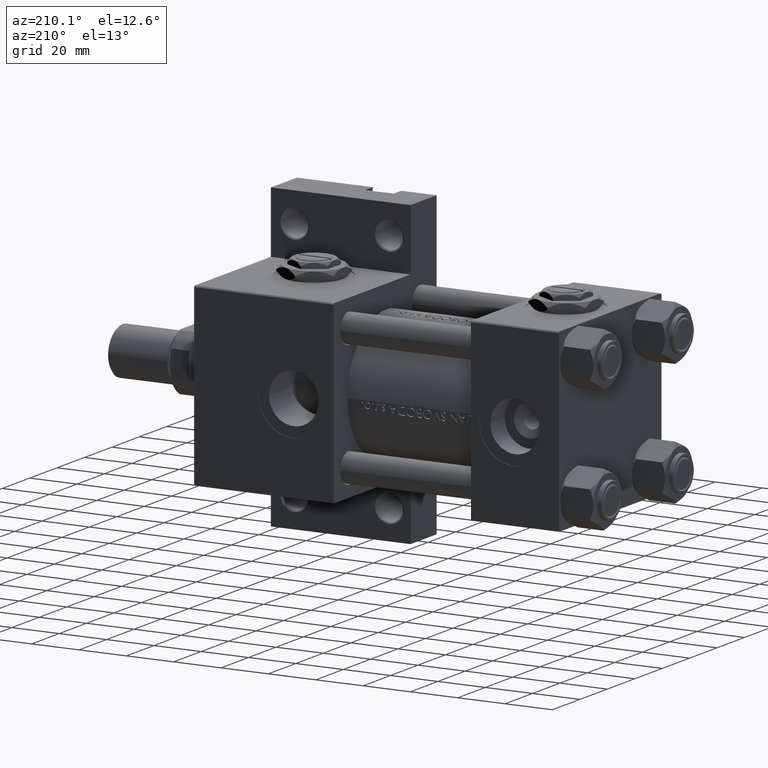
[diagram: clean part render]
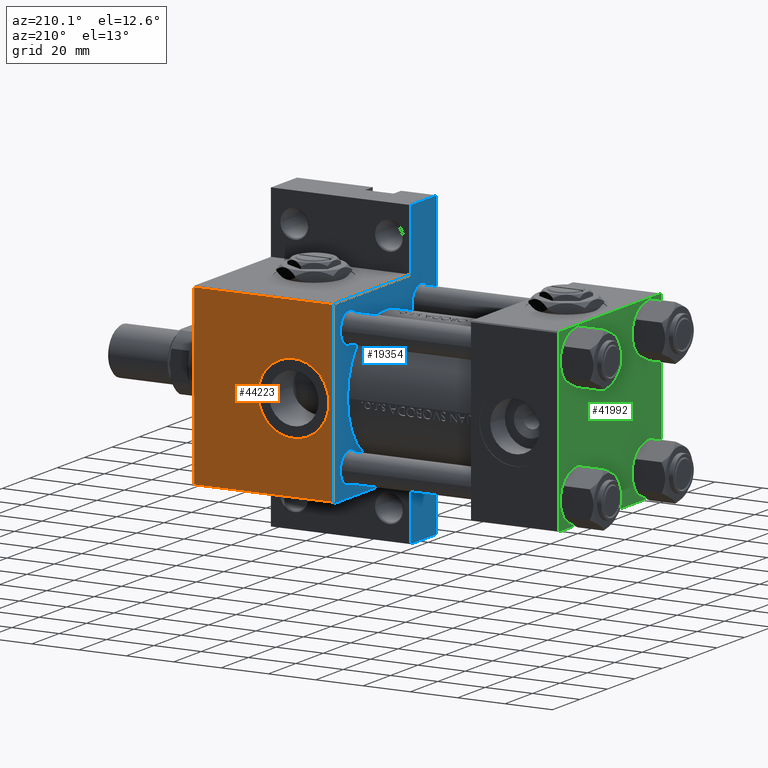
[diagram: same view with three faces highlighted in distinct colors, each labeled with its STEP entity id]
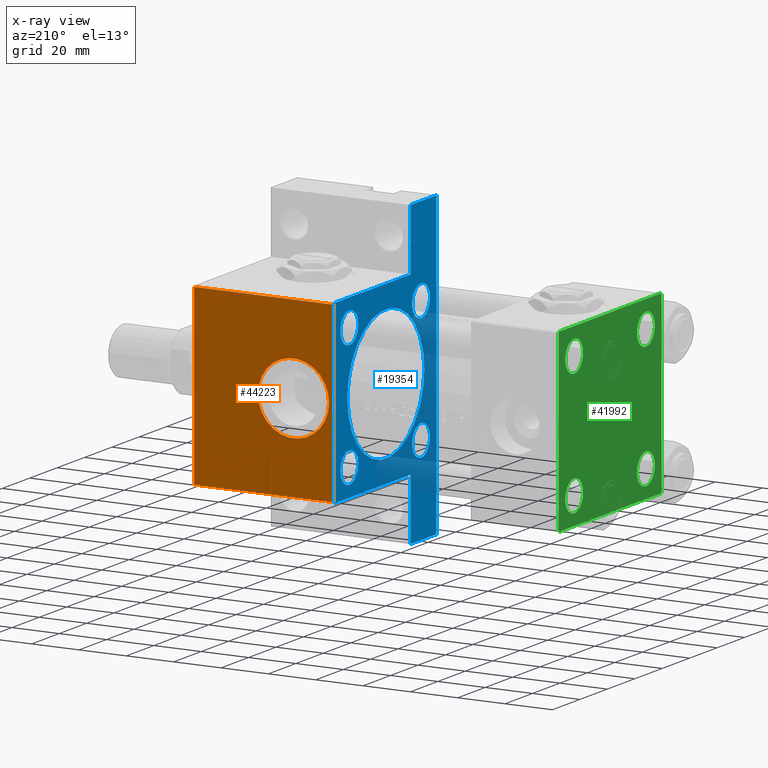
[diagram: x-ray of the same camera — body ghosted, the three highlighted faces saturated]
A machine part, auxiliary view with three faces highlighted in distinct colors.
The next image is the same camera in x-ray (body ghosted, the three faces saturated) — at least one of them is partly hidden behind the body in this view.
Their STEP definitions:

[orange] entity #44223 — the highlighted planar face has unit normal (0, -1, -0).
#439 = EDGE_CURVE ( 'NONE', #23281, #19989, #43834, .T. ) ;
#1042 = AXIS2_PLACEMENT_3D ( 'NONE', #26867, #34738, #34981 ) ;
#3076 = DIRECTION ( 'NONE',  ( 0.000000000000000000, -1.000000000000000000, -1.850371707708594316E-16 ) ) ;
#3656 = LINE ( 'NONE', #19887, #40674 ) ;
#6002 = DIRECTION ( 'NONE',  ( 1.000000000000000000, 0.000000000000000000, 0.000000000000000000 ) ) ;
#7352 = ORIENTED_EDGE ( 'NONE', *, *, #25966, .F. ) ;
#9931 = CARTESIAN_POINT ( 'NONE',  ( 112.0000000000000000, -6.938893903907226011E-15, 37.49999999999998579 ) ) ;
#10592 = VERTEX_POINT ( 'NONE', #48179 ) ;
#10626 = AXIS2_PLACEMENT_3D ( 'NONE', #9931, #29218, #33268 ) ;
#10809 = EDGE_CURVE ( 'NONE', #19989, #23281, #35987, .T. ) ;
#11886 = CARTESIAN_POINT ( 'NONE',  ( 95.00000000000000000, -36.99999999999997158, 37.49999999999997868 ) ) ;
#13180 = VECTOR ( 'NONE', #6002, 1000.000000000000000 ) ;
#16055 = ORIENTED_EDGE ( 'NONE', *, *, #46818, .T. ) ;
#17051 = EDGE_LOOP ( 'NONE', ( #26608, #44180 ) ) ;
#17581 = EDGE_CURVE ( 'NONE', #46541, #10592, #39150, .T. ) ;
#19480 = DIRECTION ( 'NONE',  ( 0.000000000000000000, 0.000000000000000000, 1.000000000000000000 ) ) ;
#19887 = CARTESIAN_POINT ( 'NONE',  ( 95.00000000000000000, 37.50000000000000000, 37.49999999999999289 ) ) ;
#19896 = VECTOR ( 'NONE', #3076, 1000.000000000000000 ) ;
#19989 = VERTEX_POINT ( 'NONE', #44779 ) ;
#22608 = LINE ( 'NONE', #49760, #19896 ) ;
#23281 = VERTEX_POINT ( 'NONE', #23734 ) ;
#23638 = ORIENTED_EDGE ( 'NONE', *, *, #17581, .T. ) ;
#23734 = CARTESIAN_POINT ( 'NONE',  ( 96.99999999999998579, -5.101923705186194844E-15, 37.49999999999998579 ) ) ;
#23823 = EDGE_LOOP ( 'NONE', ( #7352, #23638, #16055, #32313 ) ) ;
#24603 = AXIS2_PLACEMENT_3D ( 'NONE', #46358, #19480, #27099 ) ;
#25285 = LINE ( 'NONE', #26304, #13180 ) ;
#25966 = EDGE_CURVE ( 'NONE', #46541, #32373, #22608, .T. ) ;
#26304 = CARTESIAN_POINT ( 'NONE',  ( 154.0000000000000000, -36.99999999999997158, 37.49999999999997868 ) ) ;
#26608 = ORIENTED_EDGE ( 'NONE', *, *, #10809, .F. ) ;
#26867 = CARTESIAN_POINT ( 'NONE',  ( 154.0000000000000000, 37.50000000000000000, 37.49999999999999289 ) ) ;
#27099 = DIRECTION ( 'NONE',  ( 1.000000000000000000, 0.000000000000000000, 0.000000000000000000 ) ) ;
#27687 = CARTESIAN_POINT ( 'NONE',  ( 154.0000000000000000, -36.99999999999997158, 37.49999999999997868 ) ) ;
#27740 = DIRECTION ( 'NONE',  ( -1.000000000000000000, 0.000000000000000000, 0.000000000000000000 ) ) ;
#29218 = DIRECTION ( 'NONE',  ( 0.000000000000000000, 0.000000000000000000, 1.000000000000000000 ) ) ;
#30805 = CARTESIAN_POINT ( 'NONE',  ( 95.00000000000000000, 37.00000000000000000, 37.49999999999999289 ) ) ;
#32313 = ORIENTED_EDGE ( 'NONE', *, *, #47924, .T. ) ;
#32373 = VERTEX_POINT ( 'NONE', #27687 ) ;
#33268 = DIRECTION ( 'NONE',  ( 1.000000000000000000, 0.000000000000000000, 0.000000000000000000 ) ) ;
#34738 = DIRECTION ( 'NONE',  ( 0.000000000000000000, 1.850371707708594316E-16, -1.000000000000000000 ) ) ;
#34981 = DIRECTION ( 'NONE',  ( 0.000000000000000000, 1.000000000000000000, 1.850371707708594316E-16 ) ) ;
#35987 = CIRCLE ( 'NONE', #24603, 15.00000000000000000 ) ;
#39150 = LINE ( 'NONE', #30805, #41565 ) ;
#40674 = VECTOR ( 'NONE', #46256, 1000.000000000000000 ) ;
#41565 = VECTOR ( 'NONE', #27740, 1000.000000000000000 ) ;
#42323 = FACE_OUTER_BOUND ( 'NONE', #23823, .T. ) ;
#42579 = FACE_BOUND ( 'NONE', #17051, .T. ) ;
#43331 = PLANE ( 'NONE',  #1042 ) ;
#43409 = VERTEX_POINT ( 'NONE', #11886 ) ;
#43834 = CIRCLE ( 'NONE', #10626, 15.00000000000000000 ) ;
#44180 = ORIENTED_EDGE ( 'NONE', *, *, #439, .F. ) ;
#44223 = ADVANCED_FACE ( 'NONE', ( #42579, #42323 ), #43331, .F. ) ;
#44779 = CARTESIAN_POINT ( 'NONE',  ( 127.0000000000000000, -6.938893903907226011E-15, 37.49999999999998579 ) ) ;
#46067 = CARTESIAN_POINT ( 'NONE',  ( 154.0000000000000000, 37.00000000000000000, 37.49999999999999289 ) ) ;
#46256 = DIRECTION ( 'NONE',  ( 0.000000000000000000, -1.000000000000000000, -1.850371707708594316E-16 ) ) ;
#46358 = CARTESIAN_POINT ( 'NONE',  ( 112.0000000000000000, -6.938893903907226011E-15, 37.49999999999998579 ) ) ;
#46541 = VERTEX_POINT ( 'NONE', #46067 ) ;
#46818 = EDGE_CURVE ( 'NONE', #10592, #43409, #3656, .T. ) ;
#47924 = EDGE_CURVE ( 'NONE', #43409, #32373, #25285, .T. ) ;
#48179 = CARTESIAN_POINT ( 'NONE',  ( 95.00000000000000000, 37.00000000000000000, 37.49999999999999289 ) ) ;
#49760 = CARTESIAN_POINT ( 'NONE',  ( 154.0000000000000000, 37.50000000000000000, 37.49999999999999289 ) ) ;

[blue] entity #19354 — the highlighted planar face has unit normal (-1, 0, 0).
#401 = DIRECTION ( 'NONE',  ( -0.000000000000000000, 1.000000000000000000, -0.000000000000000000 ) ) ;
#672 = FACE_BOUND ( 'NONE', #16567, .T. ) ;
#1100 = CARTESIAN_POINT ( 'NONE',  ( 94.99999999999998579, -63.50000000000000000, -18.50000000000000000 ) ) ;
#1457 = VERTEX_POINT ( 'NONE', #13916 ) ;
#1868 = VECTOR ( 'NONE', #8869, 1000.000000000000000 ) ;
#2203 = EDGE_CURVE ( 'NONE', #22788, #42882, #28502, .T. ) ;
#2212 = CARTESIAN_POINT ( 'NONE',  ( 95.00000000000000000, 6.123233995736772199E-17, -0.5000000000000004441 ) ) ;
#2318 = CARTESIAN_POINT ( 'NONE',  ( 95.00000000000000000, 26.14999999999999858, 32.65000000000000568 ) ) ;
#2548 = CARTESIAN_POINT ( 'NONE',  ( 95.00000000000000000, 26.14999999999999858, -19.64999999999999503 ) ) ;
#2929 = CARTESIAN_POINT ( 'NONE',  ( 95.00000000000000000, -37.50000000000000000, 36.99999999999997868 ) ) ;
#2997 = VERTEX_POINT ( 'NONE', #17369 ) ;
#3510 = DIRECTION ( 'NONE',  ( -0.000000000000000000, 0.7071067811865672237, 0.7071067811865279218 ) ) ;
#3656 = LINE ( 'NONE', #19887, #40674 ) ;
#3969 = FACE_OUTER_BOUND ( 'NONE', #12498, .T. ) ;
#4257 = AXIS2_PLACEMENT_3D ( 'NONE', #19265, #39289, #20018 ) ;
#5439 = VERTEX_POINT ( 'NONE', #2929 ) ;
#5499 = VERTEX_POINT ( 'NONE', #39189 ) ;
#5880 = VECTOR ( 'NONE', #38406, 1000.000000000000000 ) ;
#6044 = DIRECTION ( 'NONE',  ( 1.000000000000000000, 0.000000000000000000, -0.000000000000000000 ) ) ;
#6299 = CARTESIAN_POINT ( 'NONE',  ( 95.00000000000000000, -26.14999999999999147, 19.65000000000000213 ) ) ;
#6536 = CARTESIAN_POINT ( 'NONE',  ( 95.00000000000000000, -26.14999999999999147, -26.15000000000000924 ) ) ;
#7118 = ORIENTED_EDGE ( 'NONE', *, *, #46818, .F. ) ;
#7129 = EDGE_LOOP ( 'NONE', ( #23893, #41552 ) ) ;
#7429 = ORIENTED_EDGE ( 'NONE', *, *, #42419, .T. ) ;
#7820 = EDGE_LOOP ( 'NONE', ( #8882, #42860 ) ) ;
#8156 = EDGE_CURVE ( 'NONE', #34520, #30069, #40749, .T. ) ;
#8162 = EDGE_LOOP ( 'NONE', ( #40938, #14135 ) ) ;
#8244 = VERTEX_POINT ( 'NONE', #10423 ) ;
#8302 = VERTEX_POINT ( 'NONE', #9669 ) ;
#8351 = DIRECTION ( 'NONE',  ( 0.000000000000000000, 0.000000000000000000, -1.000000000000000000 ) ) ;
#8869 = DIRECTION ( 'NONE',  ( 0.000000000000000000, 0.000000000000000000, -1.000000000000000000 ) ) ;
#8882 = ORIENTED_EDGE ( 'NONE', *, *, #26703, .T. ) ;
#9169 = VERTEX_POINT ( 'NONE', #38366 ) ;
#9255 = DIRECTION ( 'NONE',  ( 0.000000000000000000, -1.000000000000000000, 0.000000000000000000 ) ) ;
#9669 = CARTESIAN_POINT ( 'NONE',  ( 95.00000000000000000, -26.14999999999999147, 32.65000000000001990 ) ) ;
#9723 = DIRECTION ( 'NONE',  ( 1.000000000000000000, 0.000000000000000000, -0.000000000000000000 ) ) ;
#9820 = DIRECTION ( 'NONE',  ( 0.000000000000000000, 0.000000000000000000, -1.000000000000000000 ) ) ;
#10184 = EDGE_LOOP ( 'NONE', ( #40055, #25734 ) ) ;
#10423 = CARTESIAN_POINT ( 'NONE',  ( 95.00000000000000000, 3.490243377569955667E-15, -28.50000000000000000 ) ) ;
#10508 = LINE ( 'NONE', #41717, #5880 ) ;
#10592 = VERTEX_POINT ( 'NONE', #48179 ) ;
#11155 = CARTESIAN_POINT ( 'NONE',  ( 95.00000000000000000, 37.50000000000000000, 36.99999999999999289 ) ) ;
#11292 = DIRECTION ( 'NONE',  ( 1.000000000000000000, 0.000000000000000000, -0.000000000000000000 ) ) ;
#11844 = FACE_BOUND ( 'NONE', #10184, .T. ) ;
#11879 = VECTOR ( 'NONE', #8351, 1000.000000000000000 ) ;
#11886 = CARTESIAN_POINT ( 'NONE',  ( 95.00000000000000000, -36.99999999999997158, 37.49999999999997868 ) ) ;
#12412 = DIRECTION ( 'NONE',  ( 0.000000000000000000, 0.000000000000000000, 1.000000000000000000 ) ) ;
#12498 = EDGE_LOOP ( 'NONE', ( #7118, #22337, #16185, #7429, #31153, #36558, #37052, #49661, #36545, #36987 ) ) ;
#12613 = EDGE_CURVE ( 'NONE', #17613, #5499, #43111, .T. ) ;
#12829 = CARTESIAN_POINT ( 'NONE',  ( 95.00000000000000000, 63.50000000000000000, -18.50000000000000000 ) ) ;
#13648 = DIRECTION ( 'NONE',  ( 1.000000000000000000, 0.000000000000000000, 0.000000000000000000 ) ) ;
#13916 = CARTESIAN_POINT ( 'NONE',  ( 95.00000000000000000, 6.123233995736772199E-17, 27.50000000000000000 ) ) ;
#13949 = VECTOR ( 'NONE', #401, 1000.000000000000000 ) ;
#13967 = DIRECTION ( 'NONE',  ( 0.000000000000000000, 0.7071067811865474617, -0.7071067811865474617 ) ) ;
#14007 = EDGE_CURVE ( 'NONE', #21019, #8302, #46622, .T. ) ;
#14135 = ORIENTED_EDGE ( 'NONE', *, *, #32789, .T. ) ;
#14387 = DIRECTION ( 'NONE',  ( 1.000000000000000000, 0.000000000000000000, -0.000000000000000000 ) ) ;
#14398 = EDGE_CURVE ( 'NONE', #5439, #5499, #34621, .T. ) ;
#14990 = VECTOR ( 'NONE', #43629, 1000.000000000000000 ) ;
#15063 = CARTESIAN_POINT ( 'NONE',  ( 95.00000000000000000, 26.14999999999999858, -26.15000000000000213 ) ) ;
#15902 = EDGE_CURVE ( 'NONE', #10592, #50108, #22064, .T. ) ;
#15988 = CARTESIAN_POINT ( 'NONE',  ( 94.99999999999998579, -63.50000000000000000, -18.50000000000000000 ) ) ;
#16185 = ORIENTED_EDGE ( 'NONE', *, *, #45226, .T. ) ;
#16567 = EDGE_LOOP ( 'NONE', ( #22763, #26598 ) ) ;
#16645 = LINE ( 'NONE', #32342, #33781 ) ;
#17000 = CARTESIAN_POINT ( 'NONE',  ( 95.00000000000000000, 37.50000000000000000, 37.49999999999999289 ) ) ;
#17369 = CARTESIAN_POINT ( 'NONE',  ( 95.00000000000000000, -26.14999999999999147, -19.65000000000000213 ) ) ;
#17462 = EDGE_CURVE ( 'NONE', #30725, #22840, #10508, .T. ) ;
#17613 = VERTEX_POINT ( 'NONE', #1100 ) ;
#17732 = DIRECTION ( 'NONE',  ( 0.000000000000000000, 0.000000000000000000, 1.000000000000000000 ) ) ;
#19117 = DIRECTION ( 'NONE',  ( 0.000000000000000000, 0.000000000000000000, 1.000000000000000000 ) ) ;
#19265 = CARTESIAN_POINT ( 'NONE',  ( 95.00000000000000000, -26.14999999999999147, 26.15000000000000924 ) ) ;
#19354 = ADVANCED_FACE ( 'NONE', ( #34682, #672, #31616, #11844, #47084, #3969 ), #38216, .T. ) ;
#19404 = AXIS2_PLACEMENT_3D ( 'NONE', #6536, #6044, #17732 ) ;
#19887 = CARTESIAN_POINT ( 'NONE',  ( 95.00000000000000000, 37.50000000000000000, 37.49999999999999289 ) ) ;
#20018 = DIRECTION ( 'NONE',  ( 0.000000000000000000, 0.000000000000000000, 1.000000000000000000 ) ) ;
#20039 = CARTESIAN_POINT ( 'NONE',  ( 95.00000000000000000, 26.14999999999999858, 26.15000000000000213 ) ) ;
#20207 = AXIS2_PLACEMENT_3D ( 'NONE', #21647, #9723, #25186 ) ;
#20788 = DIRECTION ( 'NONE',  ( 1.000000000000000000, 0.000000000000000000, -0.000000000000000000 ) ) ;
#21019 = VERTEX_POINT ( 'NONE', #6299 ) ;
#21647 = CARTESIAN_POINT ( 'NONE',  ( 95.00000000000000000, -26.14999999999999147, -26.15000000000000924 ) ) ;
#22037 = LINE ( 'NONE', #33969, #47585 ) ;
#22064 = LINE ( 'NONE', #40847, #33825 ) ;
#22332 = CIRCLE ( 'NONE', #26394, 28.00000000000000000 ) ;
#22337 = ORIENTED_EDGE ( 'NONE', *, *, #15902, .T. ) ;
#22763 = ORIENTED_EDGE ( 'NONE', *, *, #2203, .T. ) ;
#22788 = VERTEX_POINT ( 'NONE', #2318 ) ;
#22840 = VERTEX_POINT ( 'NONE', #37319 ) ;
#23709 = CIRCLE ( 'NONE', #4257, 6.500000000000008882 ) ;
#23893 = ORIENTED_EDGE ( 'NONE', *, *, #44201, .T. ) ;
#25186 = DIRECTION ( 'NONE',  ( 0.000000000000000000, 0.000000000000000000, 1.000000000000000000 ) ) ;
#25254 = AXIS2_PLACEMENT_3D ( 'NONE', #20039, #20788, #12412 ) ;
#25734 = ORIENTED_EDGE ( 'NONE', *, *, #38043, .T. ) ;
#26285 = AXIS2_PLACEMENT_3D ( 'NONE', #15063, #29327, #19117 ) ;
#26394 = AXIS2_PLACEMENT_3D ( 'NONE', #2212, #13648, #9820 ) ;
#26549 = DIRECTION ( 'NONE',  ( 0.000000000000000000, 0.000000000000000000, 1.000000000000000000 ) ) ;
#26598 = ORIENTED_EDGE ( 'NONE', *, *, #46336, .T. ) ;
#26671 = CARTESIAN_POINT ( 'NONE',  ( 95.00000000000000000, 26.14999999999999858, 19.65000000000000568 ) ) ;
#26680 = CIRCLE ( 'NONE', #19404, 6.500000000000008882 ) ;
#26703 = EDGE_CURVE ( 'NONE', #1457, #8244, #22332, .T. ) ;
#26760 = DIRECTION ( 'NONE',  ( 0.000000000000000000, 0.000000000000000000, 1.000000000000000000 ) ) ;
#26809 = DIRECTION ( 'NONE',  ( 0.000000000000000000, 0.000000000000000000, 1.000000000000000000 ) ) ;
#27776 = EDGE_CURVE ( 'NONE', #8244, #1457, #42601, .T. ) ;
#28178 = CARTESIAN_POINT ( 'NONE',  ( 94.99999999999998579, -63.50000000000000000, -18.50000000000000000 ) ) ;
#28371 = EDGE_CURVE ( 'NONE', #17613, #32837, #45915, .T. ) ;
#28502 = CIRCLE ( 'NONE', #25254, 6.499999999999995559 ) ;
#28825 = CARTESIAN_POINT ( 'NONE',  ( 95.00000000000000000, 6.123233995736772199E-17, -0.5000000000000004441 ) ) ;
#28947 = VECTOR ( 'NONE', #35112, 1000.000000000000000 ) ;
#29047 = AXIS2_PLACEMENT_3D ( 'NONE', #46033, #11292, #26760 ) ;
#29327 = DIRECTION ( 'NONE',  ( 1.000000000000000000, 0.000000000000000000, -0.000000000000000000 ) ) ;
#29375 = CARTESIAN_POINT ( 'NONE',  ( 94.99999999999998579, -63.50000000000000000, -37.50000000000000000 ) ) ;
#29869 = EDGE_CURVE ( 'NONE', #22840, #32837, #16645, .T. ) ;
#30069 = VERTEX_POINT ( 'NONE', #30545 ) ;
#30545 = CARTESIAN_POINT ( 'NONE',  ( 95.00000000000000000, 26.14999999999999858, -32.65000000000001279 ) ) ;
#30725 = VERTEX_POINT ( 'NONE', #36276 ) ;
#30827 = EDGE_CURVE ( 'NONE', #5439, #43409, #22037, .T. ) ;
#31153 = ORIENTED_EDGE ( 'NONE', *, *, #17462, .T. ) ;
#31370 = DIRECTION ( 'NONE',  ( 0.000000000000000000, 0.000000000000000000, 1.000000000000000000 ) ) ;
#31616 = FACE_BOUND ( 'NONE', #8162, .T. ) ;
#32120 = DIRECTION ( 'NONE',  ( 1.000000000000000000, 0.000000000000000000, 0.000000000000000000 ) ) ;
#32342 = CARTESIAN_POINT ( 'NONE',  ( 95.00000000000000000, 37.50000000000000000, -37.50000000000000000 ) ) ;
#32789 = EDGE_CURVE ( 'NONE', #30069, #34520, #43584, .T. ) ;
#32837 = VERTEX_POINT ( 'NONE', #29375 ) ;
#33677 = DIRECTION ( 'NONE',  ( 1.000000000000000000, 0.000000000000000000, -0.000000000000000000 ) ) ;
#33781 = VECTOR ( 'NONE', #9255, 1000.000000000000000 ) ;
#33825 = VECTOR ( 'NONE', #13967, 1000.000000000000114 ) ;
#33969 = CARTESIAN_POINT ( 'NONE',  ( 95.00000000000000000, -37.24999999999894129, 37.25000000000100897 ) ) ;
#34520 = VERTEX_POINT ( 'NONE', #2548 ) ;
#34552 = VERTEX_POINT ( 'NONE', #44659 ) ;
#34621 = LINE ( 'NONE', #43206, #28947 ) ;
#34682 = FACE_BOUND ( 'NONE', #7129, .T. ) ;
#35112 = DIRECTION ( 'NONE',  ( 0.000000000000000000, -9.251858538542972814E-17, -1.000000000000000000 ) ) ;
#36267 = LINE ( 'NONE', #17000, #1868 ) ;
#36276 = CARTESIAN_POINT ( 'NONE',  ( 95.00000000000000000, 63.50000000000000000, -18.50000000000000000 ) ) ;
#36545 = ORIENTED_EDGE ( 'NONE', *, *, #14398, .F. ) ;
#36558 = ORIENTED_EDGE ( 'NONE', *, *, #29869, .T. ) ;
#36987 = ORIENTED_EDGE ( 'NONE', *, *, #30827, .T. ) ;
#37052 = ORIENTED_EDGE ( 'NONE', *, *, #28371, .F. ) ;
#37218 = CARTESIAN_POINT ( 'NONE',  ( 95.00000000000000000, -26.14999999999999147, 26.15000000000000924 ) ) ;
#37319 = CARTESIAN_POINT ( 'NONE',  ( 95.00000000000000000, 63.50000000000000000, -37.50000000000000000 ) ) ;
#38043 = EDGE_CURVE ( 'NONE', #9169, #2997, #42063, .T. ) ;
#38216 = PLANE ( 'NONE',  #45687 ) ;
#38366 = CARTESIAN_POINT ( 'NONE',  ( 95.00000000000000000, -26.14999999999999147, -32.65000000000002700 ) ) ;
#38406 = DIRECTION ( 'NONE',  ( 0.000000000000000000, 0.000000000000000000, -1.000000000000000000 ) ) ;
#38518 = EDGE_CURVE ( 'NONE', #2997, #9169, #26680, .T. ) ;
#39054 = CIRCLE ( 'NONE', #46330, 6.499999999999995559 ) ;
#39189 = CARTESIAN_POINT ( 'NONE',  ( 95.00000000000000000, -37.50000000000000000, -18.50000000000000000 ) ) ;
#39289 = DIRECTION ( 'NONE',  ( 1.000000000000000000, 0.000000000000000000, -0.000000000000000000 ) ) ;
#40055 = ORIENTED_EDGE ( 'NONE', *, *, #38518, .T. ) ;
#40322 = CARTESIAN_POINT ( 'NONE',  ( 95.00000000000000000, 26.14999999999999858, 26.15000000000000213 ) ) ;
#40674 = VECTOR ( 'NONE', #46256, 1000.000000000000000 ) ;
#40749 = CIRCLE ( 'NONE', #26285, 6.500000000000008882 ) ;
#40847 = CARTESIAN_POINT ( 'NONE',  ( 95.00000000000000000, 37.25000000000000000, 37.25000000000000000 ) ) ;
#40938 = ORIENTED_EDGE ( 'NONE', *, *, #8156, .T. ) ;
#41552 = ORIENTED_EDGE ( 'NONE', *, *, #14007, .T. ) ;
#41717 = CARTESIAN_POINT ( 'NONE',  ( 95.00000000000000000, 63.50000000000000000, -18.50000000000000000 ) ) ;
#42034 = DIRECTION ( 'NONE',  ( -1.000000000000000000, -0.000000000000000000, 0.000000000000000000 ) ) ;
#42063 = CIRCLE ( 'NONE', #20207, 6.500000000000008882 ) ;
#42268 = CARTESIAN_POINT ( 'NONE',  ( 95.00000000000000000, 0.000000000000000000, 0.000000000000000000 ) ) ;
#42419 = EDGE_CURVE ( 'NONE', #34552, #30725, #42995, .T. ) ;
#42601 = CIRCLE ( 'NONE', #49903, 28.00000000000000000 ) ;
#42860 = ORIENTED_EDGE ( 'NONE', *, *, #27776, .T. ) ;
#42882 = VERTEX_POINT ( 'NONE', #26671 ) ;
#42995 = LINE ( 'NONE', #12829, #13949 ) ;
#43111 = LINE ( 'NONE', #28178, #14990 ) ;
#43206 = CARTESIAN_POINT ( 'NONE',  ( 95.00000000000000000, -37.50000000000000000, 37.49999999999997868 ) ) ;
#43409 = VERTEX_POINT ( 'NONE', #11886 ) ;
#43584 = CIRCLE ( 'NONE', #29047, 6.500000000000008882 ) ;
#43629 = DIRECTION ( 'NONE',  ( 5.337610695313252371E-16, 1.000000000000000000, 0.000000000000000000 ) ) ;
#44201 = EDGE_CURVE ( 'NONE', #8302, #21019, #23709, .T. ) ;
#44273 = DIRECTION ( 'NONE',  ( 0.000000000000000000, 0.000000000000000000, -1.000000000000000000 ) ) ;
#44659 = CARTESIAN_POINT ( 'NONE',  ( 95.00000000000000000, 37.50000000000000000, -18.50000000000000355 ) ) ;
#45226 = EDGE_CURVE ( 'NONE', #50108, #34552, #36267, .T. ) ;
#45687 = AXIS2_PLACEMENT_3D ( 'NONE', #42268, #42034, #31370 ) ;
#45915 = LINE ( 'NONE', #15988, #11879 ) ;
#46033 = CARTESIAN_POINT ( 'NONE',  ( 95.00000000000000000, 26.14999999999999858, -26.15000000000000213 ) ) ;
#46256 = DIRECTION ( 'NONE',  ( 0.000000000000000000, -1.000000000000000000, -1.850371707708594316E-16 ) ) ;
#46330 = AXIS2_PLACEMENT_3D ( 'NONE', #40322, #14387, #26549 ) ;
#46336 = EDGE_CURVE ( 'NONE', #42882, #22788, #39054, .T. ) ;
#46622 = CIRCLE ( 'NONE', #48223, 6.500000000000008882 ) ;
#46818 = EDGE_CURVE ( 'NONE', #10592, #43409, #3656, .T. ) ;
#47084 = FACE_BOUND ( 'NONE', #7820, .T. ) ;
#47585 = VECTOR ( 'NONE', #3510, 1000.000000000000000 ) ;
#48179 = CARTESIAN_POINT ( 'NONE',  ( 95.00000000000000000, 37.00000000000000000, 37.49999999999999289 ) ) ;
#48223 = AXIS2_PLACEMENT_3D ( 'NONE', #37218, #33677, #26809 ) ;
#49661 = ORIENTED_EDGE ( 'NONE', *, *, #12613, .T. ) ;
#49903 = AXIS2_PLACEMENT_3D ( 'NONE', #28825, #32120, #44273 ) ;
#50108 = VERTEX_POINT ( 'NONE', #11155 ) ;

[green] entity #41992 — the highlighted planar face has unit normal (-1, 0, -0).
#313 = CARTESIAN_POINT ( 'NONE',  ( 0.000000000000000000, 37.49999999999999289, 37.00000000000000000 ) ) ;
#370 = ORIENTED_EDGE ( 'NONE', *, *, #31487, .F. ) ;
#653 = VECTOR ( 'NONE', #24554, 1000.000000000000000 ) ;
#675 = ORIENTED_EDGE ( 'NONE', *, *, #1389, .T. ) ;
#1188 = CARTESIAN_POINT ( 'NONE',  ( 0.000000000000000000, -26.14999999999999147, 32.65000000000003411 ) ) ;
#1301 = DIRECTION ( 'NONE',  ( 0.000000000000000000, -1.000000000000000000, -9.251858538542971581E-17 ) ) ;
#1389 = EDGE_CURVE ( 'NONE', #43995, #11168, #44689, .T. ) ;
#1515 = DIRECTION ( 'NONE',  ( 0.000000000000000000, 0.000000000000000000, 1.000000000000000000 ) ) ;
#1718 = LINE ( 'NONE', #42891, #653 ) ;
#2169 = CARTESIAN_POINT ( 'NONE',  ( 0.000000000000000000, -37.00000000000002132, -37.50000000000000711 ) ) ;
#2487 = ORIENTED_EDGE ( 'NONE', *, *, #18529, .T. ) ;
#2746 = AXIS2_PLACEMENT_3D ( 'NONE', #4775, #9829, #16973 ) ;
#3092 = CARTESIAN_POINT ( 'NONE',  ( 0.000000000000000000, 0.000000000000000000, 0.000000000000000000 ) ) ;
#3843 = CARTESIAN_POINT ( 'NONE',  ( -0.000000000000000000, -37.25000000000000000, 37.25000000000000000 ) ) ;
#3965 = AXIS2_PLACEMENT_3D ( 'NONE', #23461, #4170, #35136 ) ;
#4170 = DIRECTION ( 'NONE',  ( 1.000000000000000000, -0.000000000000000000, 0.000000000000000000 ) ) ;
#4588 = DIRECTION ( 'NONE',  ( 1.000000000000000000, -0.000000000000000000, 0.000000000000000000 ) ) ;
#4775 = CARTESIAN_POINT ( 'NONE',  ( 0.000000000000000000, 26.14999999999999858, -26.15000000000000213 ) ) ;
#5046 = CIRCLE ( 'NONE', #26940, 6.500000000000015987 ) ;
#5457 = EDGE_CURVE ( 'NONE', #11239, #10290, #28905, .T. ) ;
#6039 = VERTEX_POINT ( 'NONE', #1188 ) ;
#6104 = VERTEX_POINT ( 'NONE', #2169 ) ;
#6134 = DIRECTION ( 'NONE',  ( 0.000000000000000000, -0.7071067811865524577, 0.7071067811865426878 ) ) ;
#6389 = DIRECTION ( 'NONE',  ( -1.000000000000000000, 0.000000000000000000, -0.000000000000000000 ) ) ;
#6756 = ORIENTED_EDGE ( 'NONE', *, *, #43312, .T. ) ;
#6864 = EDGE_CURVE ( 'NONE', #10792, #6039, #7619, .T. ) ;
#7563 = VECTOR ( 'NONE', #42645, 1000.000000000000114 ) ;
#7619 = CIRCLE ( 'NONE', #23017, 6.500000000000023093 ) ;
#7935 = EDGE_LOOP ( 'NONE', ( #13825, #42552 ) ) ;
#8903 = LINE ( 'NONE', #40344, #27320 ) ;
#9017 = CARTESIAN_POINT ( 'NONE',  ( 0.000000000000000000, 37.49999999999999289, -37.50000000000000000 ) ) ;
#9462 = DIRECTION ( 'NONE',  ( -0.000000000000000000, -0.7071067811865474617, -0.7071067811865474617 ) ) ;
#9829 = DIRECTION ( 'NONE',  ( 1.000000000000000000, -0.000000000000000000, 0.000000000000000000 ) ) ;
#9975 = VECTOR ( 'NONE', #26527, 1000.000000000000114 ) ;
#10149 = CARTESIAN_POINT ( 'NONE',  ( 0.000000000000000000, -26.14999999999999147, -32.65000000000002700 ) ) ;
#10290 = VERTEX_POINT ( 'NONE', #313 ) ;
#10562 = DIRECTION ( 'NONE',  ( 0.000000000000000000, 0.000000000000000000, 1.000000000000000000 ) ) ;
#10792 = VERTEX_POINT ( 'NONE', #11622 ) ;
#10798 = CARTESIAN_POINT ( 'NONE',  ( 0.000000000000000000, 26.14999999999999858, 32.65000000000002700 ) ) ;
#11168 = VERTEX_POINT ( 'NONE', #50212 ) ;
#11239 = VERTEX_POINT ( 'NONE', #34076 ) ;
#11622 = CARTESIAN_POINT ( 'NONE',  ( 0.000000000000000000, -26.14999999999999147, 19.64999999999999147 ) ) ;
#11954 = CARTESIAN_POINT ( 'NONE',  ( 0.000000000000000000, -26.14999999999999147, 26.15000000000000924 ) ) ;
#12459 = CIRCLE ( 'NONE', #2746, 6.500000000000015987 ) ;
#13185 = CARTESIAN_POINT ( 'NONE',  ( 0.000000000000000000, -26.14999999999999147, -26.15000000000000924 ) ) ;
#13825 = ORIENTED_EDGE ( 'NONE', *, *, #34264, .T. ) ;
#14451 = CIRCLE ( 'NONE', #34690, 6.500000000000023093 ) ;
#14489 = VERTEX_POINT ( 'NONE', #26749 ) ;
#14777 = FACE_BOUND ( 'NONE', #7935, .T. ) ;
#14779 = EDGE_CURVE ( 'NONE', #11239, #16752, #8903, .T. ) ;
#16181 = ORIENTED_EDGE ( 'NONE', *, *, #19149, .T. ) ;
#16590 = CARTESIAN_POINT ( 'NONE',  ( 0.000000000000000000, -37.24999999999975842, -37.25000000000027001 ) ) ;
#16669 = CARTESIAN_POINT ( 'NONE',  ( 0.000000000000000000, 37.49999999999999289, 37.50000000000000000 ) ) ;
#16752 = VERTEX_POINT ( 'NONE', #47549 ) ;
#16973 = DIRECTION ( 'NONE',  ( 0.000000000000000000, 0.000000000000000000, 1.000000000000000000 ) ) ;
#17657 = EDGE_CURVE ( 'NONE', #6104, #33780, #43448, .T. ) ;
#17830 = FACE_OUTER_BOUND ( 'NONE', #32293, .T. ) ;
#18070 = EDGE_CURVE ( 'NONE', #21391, #6104, #27561, .T. ) ;
#18109 = ORIENTED_EDGE ( 'NONE', *, *, #41384, .T. ) ;
#18161 = ORIENTED_EDGE ( 'NONE', *, *, #27708, .T. ) ;
#18335 = FACE_BOUND ( 'NONE', #47907, .T. ) ;
#18529 = EDGE_CURVE ( 'NONE', #27027, #16752, #39091, .T. ) ;
#18826 = PLANE ( 'NONE',  #22045 ) ;
#19149 = EDGE_CURVE ( 'NONE', #14489, #41143, #12459, .T. ) ;
#20884 = EDGE_CURVE ( 'NONE', #11168, #43995, #33566, .T. ) ;
#21212 = VERTEX_POINT ( 'NONE', #26352 ) ;
#21391 = VERTEX_POINT ( 'NONE', #44727 ) ;
#21719 = EDGE_LOOP ( 'NONE', ( #37932, #675 ) ) ;
#21741 = ORIENTED_EDGE ( 'NONE', *, *, #24327, .T. ) ;
#21941 = ORIENTED_EDGE ( 'NONE', *, *, #17657, .T. ) ;
#22045 = AXIS2_PLACEMENT_3D ( 'NONE', #3092, #6389, #45203 ) ;
#23017 = AXIS2_PLACEMENT_3D ( 'NONE', #39043, #38551, #43785 ) ;
#23461 = CARTESIAN_POINT ( 'NONE',  ( 0.000000000000000000, 26.14999999999999858, 26.15000000000000213 ) ) ;
#23720 = VECTOR ( 'NONE', #6134, 1000.000000000000000 ) ;
#24225 = ORIENTED_EDGE ( 'NONE', *, *, #6864, .T. ) ;
#24327 = EDGE_CURVE ( 'NONE', #32224, #21391, #29000, .T. ) ;
#24487 = DIRECTION ( 'NONE',  ( 0.000000000000000000, -1.000000000000000000, -9.251858538542972814E-17 ) ) ;
#24554 = DIRECTION ( 'NONE',  ( 0.000000000000000000, 9.251858538542971581E-17, -1.000000000000000000 ) ) ;
#25133 = CIRCLE ( 'NONE', #36488, 6.500000000000023093 ) ;
#25547 = CARTESIAN_POINT ( 'NONE',  ( 0.000000000000000000, 26.14999999999999858, 26.15000000000000213 ) ) ;
#26352 = CARTESIAN_POINT ( 'NONE',  ( 0.000000000000000000, 26.14999999999999858, 19.64999999999998437 ) ) ;
#26527 = DIRECTION ( 'NONE',  ( 0.000000000000000000, 0.7071067811865474617, -0.7071067811865474617 ) ) ;
#26749 = CARTESIAN_POINT ( 'NONE',  ( 0.000000000000000000, 26.14999999999999858, -32.65000000000001990 ) ) ;
#26940 = AXIS2_PLACEMENT_3D ( 'NONE', #38770, #46880, #46378 ) ;
#27027 = VERTEX_POINT ( 'NONE', #45197 ) ;
#27320 = VECTOR ( 'NONE', #1301, 1000.000000000000000 ) ;
#27561 = LINE ( 'NONE', #9017, #36718 ) ;
#27708 = EDGE_CURVE ( 'NONE', #10290, #32224, #32366, .T. ) ;
#27894 = AXIS2_PLACEMENT_3D ( 'NONE', #13185, #43365, #1515 ) ;
#28905 = LINE ( 'NONE', #45285, #9975 ) ;
#29000 = LINE ( 'NONE', #31795, #29551 ) ;
#29551 = VECTOR ( 'NONE', #9462, 1000.000000000000114 ) ;
#29648 = VERTEX_POINT ( 'NONE', #10798 ) ;
#29850 = DIRECTION ( 'NONE',  ( 1.000000000000000000, -0.000000000000000000, 0.000000000000000000 ) ) ;
#30757 = CARTESIAN_POINT ( 'NONE',  ( 0.000000000000000000, 37.49999999999999289, -36.99999999999998579 ) ) ;
#31487 = EDGE_CURVE ( 'NONE', #27027, #33780, #1718, .T. ) ;
#31682 = DIRECTION ( 'NONE',  ( 0.000000000000000000, 0.000000000000000000, 1.000000000000000000 ) ) ;
#31795 = CARTESIAN_POINT ( 'NONE',  ( 0.000000000000000000, 37.24999999999998579, -37.24999999999998579 ) ) ;
#32224 = VERTEX_POINT ( 'NONE', #30757 ) ;
#32293 = EDGE_LOOP ( 'NONE', ( #18161, #21741, #41698, #21941, #370, #2487, #42736, #49041 ) ) ;
#32366 = LINE ( 'NONE', #16669, #49090 ) ;
#33566 = CIRCLE ( 'NONE', #27894, 6.500000000000015987 ) ;
#33780 = VERTEX_POINT ( 'NONE', #40300 ) ;
#34076 = CARTESIAN_POINT ( 'NONE',  ( 0.000000000000000000, 36.99999999999999289, 37.50000000000000000 ) ) ;
#34167 = AXIS2_PLACEMENT_3D ( 'NONE', #43844, #35506, #31682 ) ;
#34264 = EDGE_CURVE ( 'NONE', #29648, #21212, #47614, .T. ) ;
#34690 = AXIS2_PLACEMENT_3D ( 'NONE', #25547, #29850, #10562 ) ;
#35136 = DIRECTION ( 'NONE',  ( 0.000000000000000000, 0.000000000000000000, 1.000000000000000000 ) ) ;
#35506 = DIRECTION ( 'NONE',  ( 1.000000000000000000, -0.000000000000000000, 0.000000000000000000 ) ) ;
#35997 = EDGE_CURVE ( 'NONE', #21212, #29648, #14451, .T. ) ;
#36488 = AXIS2_PLACEMENT_3D ( 'NONE', #11954, #4588, #46449 ) ;
#36718 = VECTOR ( 'NONE', #24487, 1000.000000000000000 ) ;
#37932 = ORIENTED_EDGE ( 'NONE', *, *, #20884, .T. ) ;
#38551 = DIRECTION ( 'NONE',  ( 1.000000000000000000, -0.000000000000000000, 0.000000000000000000 ) ) ;
#38770 = CARTESIAN_POINT ( 'NONE',  ( 0.000000000000000000, 26.14999999999999858, -26.15000000000000213 ) ) ;
#39043 = CARTESIAN_POINT ( 'NONE',  ( 0.000000000000000000, -26.14999999999999147, 26.15000000000000924 ) ) ;
#39091 = LINE ( 'NONE', #3843, #7563 ) ;
#40300 = CARTESIAN_POINT ( 'NONE',  ( 0.000000000000000000, -37.50000000000000000, -37.00000000000003553 ) ) ;
#40344 = CARTESIAN_POINT ( 'NONE',  ( 0.000000000000000000, 37.49999999999999289, 37.50000000000000000 ) ) ;
#41143 = VERTEX_POINT ( 'NONE', #46261 ) ;
#41384 = EDGE_CURVE ( 'NONE', #6039, #10792, #25133, .T. ) ;
#41698 = ORIENTED_EDGE ( 'NONE', *, *, #18070, .T. ) ;
#41992 = ADVANCED_FACE ( 'NONE', ( #49515, #45958, #18335, #14777, #17830 ), #18826, .T. ) ;
#42552 = ORIENTED_EDGE ( 'NONE', *, *, #35997, .T. ) ;
#42645 = DIRECTION ( 'NONE',  ( -0.000000000000000000, 0.7071067811865474617, 0.7071067811865474617 ) ) ;
#42736 = ORIENTED_EDGE ( 'NONE', *, *, #14779, .F. ) ;
#42891 = CARTESIAN_POINT ( 'NONE',  ( 0.000000000000000000, -37.50000000000000711, 37.49999999999999289 ) ) ;
#42980 = EDGE_LOOP ( 'NONE', ( #18109, #24225 ) ) ;
#43312 = EDGE_CURVE ( 'NONE', #41143, #14489, #5046, .T. ) ;
#43365 = DIRECTION ( 'NONE',  ( 1.000000000000000000, -0.000000000000000000, 0.000000000000000000 ) ) ;
#43448 = LINE ( 'NONE', #16590, #23720 ) ;
#43772 = DIRECTION ( 'NONE',  ( 0.000000000000000000, 0.000000000000000000, -1.000000000000000000 ) ) ;
#43785 = DIRECTION ( 'NONE',  ( 0.000000000000000000, 0.000000000000000000, 1.000000000000000000 ) ) ;
#43844 = CARTESIAN_POINT ( 'NONE',  ( 0.000000000000000000, -26.14999999999999147, -26.15000000000000924 ) ) ;
#43995 = VERTEX_POINT ( 'NONE', #10149 ) ;
#44689 = CIRCLE ( 'NONE', #34167, 6.500000000000015987 ) ;
#44727 = CARTESIAN_POINT ( 'NONE',  ( 0.000000000000000000, 36.99999999999997868, -37.50000000000000000 ) ) ;
#45197 = CARTESIAN_POINT ( 'NONE',  ( 0.000000000000000000, -37.50000000000000711, 36.99999999999999289 ) ) ;
#45203 = DIRECTION ( 'NONE',  ( -0.000000000000000000, 0.000000000000000000, 1.000000000000000000 ) ) ;
#45285 = CARTESIAN_POINT ( 'NONE',  ( 0.000000000000000000, 37.24999999999999289, 37.24999999999999289 ) ) ;
#45958 = FACE_BOUND ( 'NONE', #21719, .T. ) ;
#46261 = CARTESIAN_POINT ( 'NONE',  ( 0.000000000000000000, 26.14999999999999858, -19.64999999999998792 ) ) ;
#46378 = DIRECTION ( 'NONE',  ( 0.000000000000000000, 0.000000000000000000, 1.000000000000000000 ) ) ;
#46449 = DIRECTION ( 'NONE',  ( 0.000000000000000000, 0.000000000000000000, 1.000000000000000000 ) ) ;
#46880 = DIRECTION ( 'NONE',  ( 1.000000000000000000, -0.000000000000000000, 0.000000000000000000 ) ) ;
#47549 = CARTESIAN_POINT ( 'NONE',  ( 0.000000000000000000, -37.00000000000000711, 37.49999999999999289 ) ) ;
#47614 = CIRCLE ( 'NONE', #3965, 6.500000000000023093 ) ;
#47907 = EDGE_LOOP ( 'NONE', ( #6756, #16181 ) ) ;
#49041 = ORIENTED_EDGE ( 'NONE', *, *, #5457, .T. ) ;
#49090 = VECTOR ( 'NONE', #43772, 1000.000000000000000 ) ;
#49515 = FACE_BOUND ( 'NONE', #42980, .T. ) ;
#50212 = CARTESIAN_POINT ( 'NONE',  ( 0.000000000000000000, -26.14999999999999147, -19.64999999999999503 ) ) ;